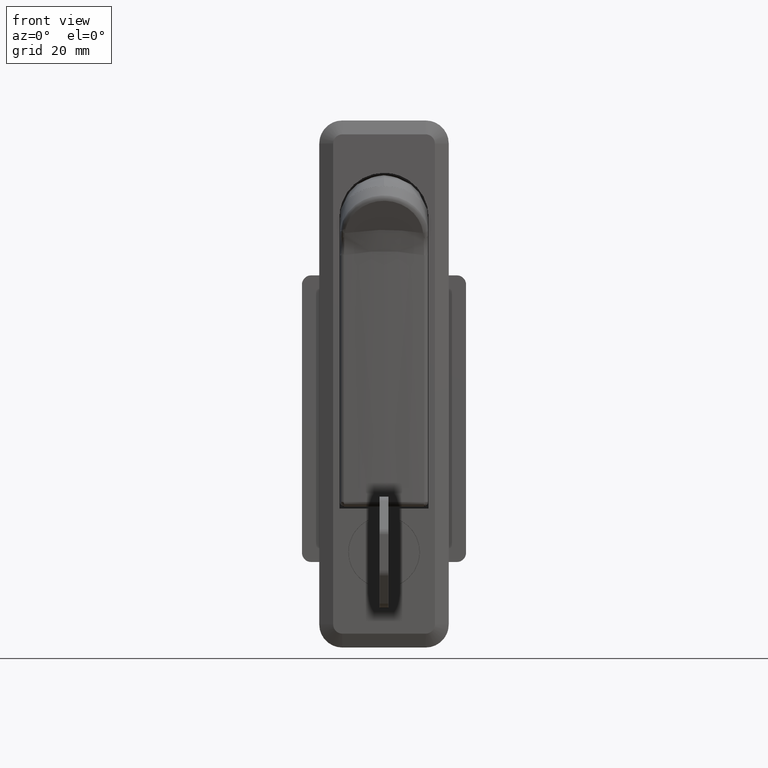
[diagram: clean part render]
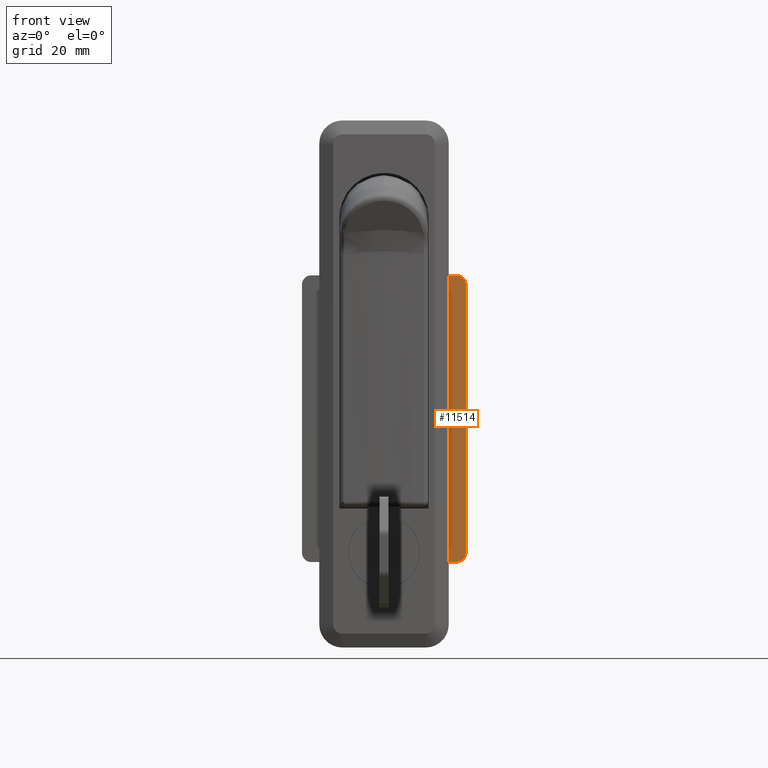
[diagram: same view with one face highlighted and labeled with its STEP entity id]
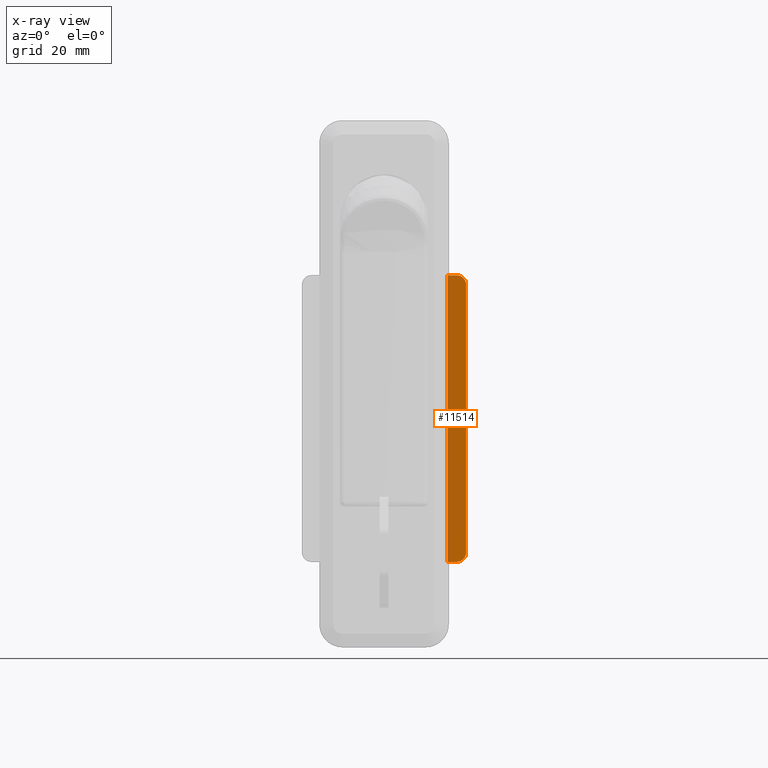
[diagram: x-ray of the same camera — body ghosted, the highlighted face saturated]
A machine part, front view. The second image highlights one B-rep face of the part: STEP entity #11514.
The next image is the same camera in x-ray: the body ghosted, the highlighted face saturated — about 0% of this face is hidden behind the body in this view.
In plain terms, the highlighted face is a freeform B-spline surface patch.
Its self-contained STEP definition (entity closure, byte-faithful):
#10907=CARTESIAN_POINT('',(15.750000000000000,1.299994665527336,-74.500000000000000));
#10908=VERTEX_POINT('',#10907);
#10914=CARTESIAN_POINT('',(13.750000000000000,1.299994665527336,-74.500000000000000));
#10915=VERTEX_POINT('',#10914);
#10916=CARTESIAN_POINT('',(13.750000000000000,1.299994665527336,-74.500000000000000));
#10917=CARTESIAN_POINT('',(15.750000000000000,1.299994665527336,-74.500000000000000));
#10918=QUASI_UNIFORM_CURVE('',1,(#10916,#10917),.UNSPECIFIED.,.F.,.U.);
#10919=EDGE_CURVE('',#10915,#10908,#10918,.T.);
#11217=CARTESIAN_POINT('',(17.750000000000000,1.299994665527336,-14.500000000000000));
#11218=VERTEX_POINT('',#11217);
#11219=CARTESIAN_POINT('',(15.750000000000000,1.299994665527336,-12.500000000000000));
#11220=VERTEX_POINT('',#11219);
#11221=CARTESIAN_POINT('',(17.750000000000000,1.299994665527336,-14.500000000000000));
#11222=CARTESIAN_POINT('',(17.750090320386299,1.299994665527379,-14.303644442886981));
#11223=CARTESIAN_POINT('',(17.701395678338010,1.299994665527237,-13.976448049892699));
#11224=CARTESIAN_POINT('',(17.506366890574618,1.299994665527549,-13.505517154992940));
#11225=CARTESIAN_POINT('',(17.235530339557879,1.299994665526825,-13.130834907744321));
#11226=CARTESIAN_POINT('',(16.870211217992100,1.299994665527763,-12.823479620284930));
#11227=CARTESIAN_POINT('',(16.388004959578449,1.299994665527109,-12.573249789345210));
#11228=CARTESIAN_POINT('',(15.995473260654380,1.299994665527294,-12.499777193301330));
#11229=CARTESIAN_POINT('',(15.750000000000000,1.299994665527336,-12.500000000000000));
#11230=B_SPLINE_CURVE_WITH_KNOTS('',3,(#11221,#11222,#11223,#11224,#11225,#11226,#11227,#11228,#11229),.UNSPECIFIED.,.F.,.U.,(4,1,1,1,1,1,4),(0.000000332094354,0.589051130117664,0.981785112375756,1.521795435853753,1.963512975545801,2.405345263374744,3.141671488703100),.UNSPECIFIED.);
#11231=EDGE_CURVE('',#11218,#11220,#11230,.T.);
#11275=CARTESIAN_POINT('',(17.750000000000000,1.299994665527336,-72.500000000000000));
#11276=VERTEX_POINT('',#11275);
#11277=CARTESIAN_POINT('',(15.750000000000000,1.299994665527336,-74.500000000000000));
#11278=CARTESIAN_POINT('',(15.946348289870681,1.299994665527265,-74.500078059873886));
#11279=CARTESIAN_POINT('',(16.371773375539870,1.299994665527493,-74.436898187632892));
#11280=CARTESIAN_POINT('',(16.890888221053618,1.299994665527464,-74.175701497736682));
#11281=CARTESIAN_POINT('',(17.276780496757681,1.299994665527095,-73.816995360274774));
#11282=CARTESIAN_POINT('',(17.509603383009591,1.299994665527692,-73.477647434706569));
#11283=CARTESIAN_POINT('',(17.697265164117070,1.299994665527009,-73.039895149855880));
#11284=CARTESIAN_POINT('',(17.750132036000551,1.299994665527890,-72.712730910654287));
#11285=CARTESIAN_POINT('',(17.750000000000000,1.299994665527336,-72.500000000000000));
#11286=B_SPLINE_CURVE_WITH_KNOTS('',3,(#11277,#11278,#11279,#11280,#11281,#11282,#11283,#11284,#11285),.UNSPECIFIED.,.F.,.U.,(4,1,1,1,1,1,4),(0.000000332090957,0.589051130114373,1.276326964423397,1.718083666665328,2.159886708421341,2.503521693022835,3.141671488703072),.UNSPECIFIED.);
#11287=EDGE_CURVE('',#10908,#11276,#11286,.T.);
#11382=CARTESIAN_POINT('',(13.750000000000000,1.299994665527336,-12.500000000000000));
#11383=VERTEX_POINT('',#11382);
#11384=CARTESIAN_POINT('',(13.750000000000000,1.299994665527336,-12.500000000000000));
#11385=CARTESIAN_POINT('',(15.750000000000000,1.299994665527336,-12.500000000000000));
#11386=QUASI_UNIFORM_CURVE('',1,(#11384,#11385),.UNSPECIFIED.,.F.,.U.);
#11387=EDGE_CURVE('',#11383,#11220,#11386,.T.);
#11486=CARTESIAN_POINT('',(17.750000000000000,1.299994665527336,-72.500000000000000));
#11487=CARTESIAN_POINT('',(17.750000000000000,1.299994665527336,-14.500000000000000));
#11488=QUASI_UNIFORM_CURVE('',1,(#11486,#11487),.UNSPECIFIED.,.F.,.U.);
#11489=EDGE_CURVE('',#11276,#11218,#11488,.T.);
#11497=CARTESIAN_POINT('',(17.949799992247218,1.299994665527336,-77.596899879831966));
#11498=CARTESIAN_POINT('',(17.949799992247218,1.299994665527336,-9.403098457198446));
#11499=CARTESIAN_POINT('',(13.550199900464420,1.299994665527336,-77.596899879831966));
#11500=CARTESIAN_POINT('',(13.550199900464420,1.299994665527336,-9.403098457198446));
#11501=B_SPLINE_SURFACE_WITH_KNOTS('',1,1,((#11497,#11499),(#11498,#11500)),.UNSPECIFIED.,.F.,.F.,.U.,(2,2),(2,2),(0.0,68.193801422633527),(0.0,4.399600091782807),.UNSPECIFIED.);
#11502=ORIENTED_EDGE('',*,*,#10919,.T.);
#11503=ORIENTED_EDGE('',*,*,#11287,.T.);
#11504=ORIENTED_EDGE('',*,*,#11489,.T.);
#11505=ORIENTED_EDGE('',*,*,#11231,.T.);
#11506=ORIENTED_EDGE('',*,*,#11387,.F.);
#11507=CARTESIAN_POINT('',(13.750000000000000,1.299994665527336,-74.500000000000000));
#11508=CARTESIAN_POINT('',(13.750000000000000,1.299994665527336,-12.500000000000000));
#11509=QUASI_UNIFORM_CURVE('',1,(#11507,#11508),.UNSPECIFIED.,.F.,.U.);
#11510=EDGE_CURVE('',#10915,#11383,#11509,.T.);
#11511=ORIENTED_EDGE('',*,*,#11510,.F.);
#11512=EDGE_LOOP('',(#11502,#11503,#11504,#11505,#11506,#11511));
#11513=FACE_OUTER_BOUND('',#11512,.T.);
#11514=ADVANCED_FACE('',(#11513),#11501,.T.);